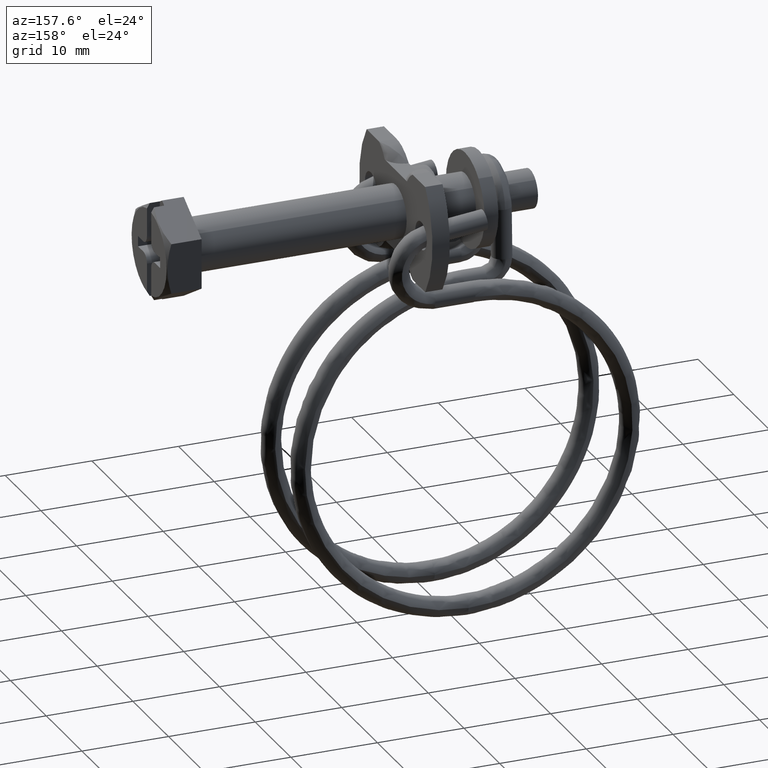
[diagram: clean part render]
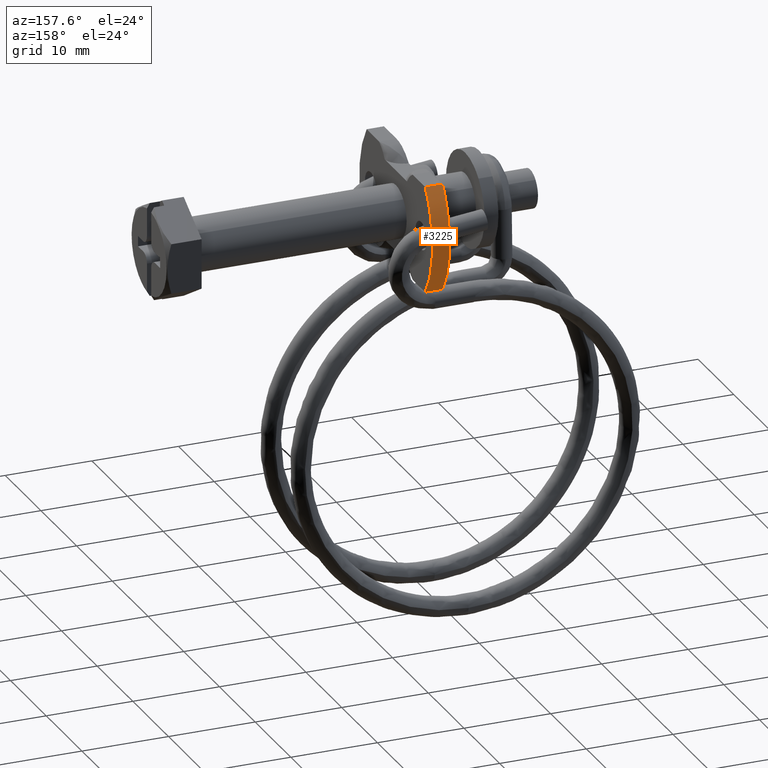
[diagram: same view with one face highlighted and labeled with its STEP entity id]
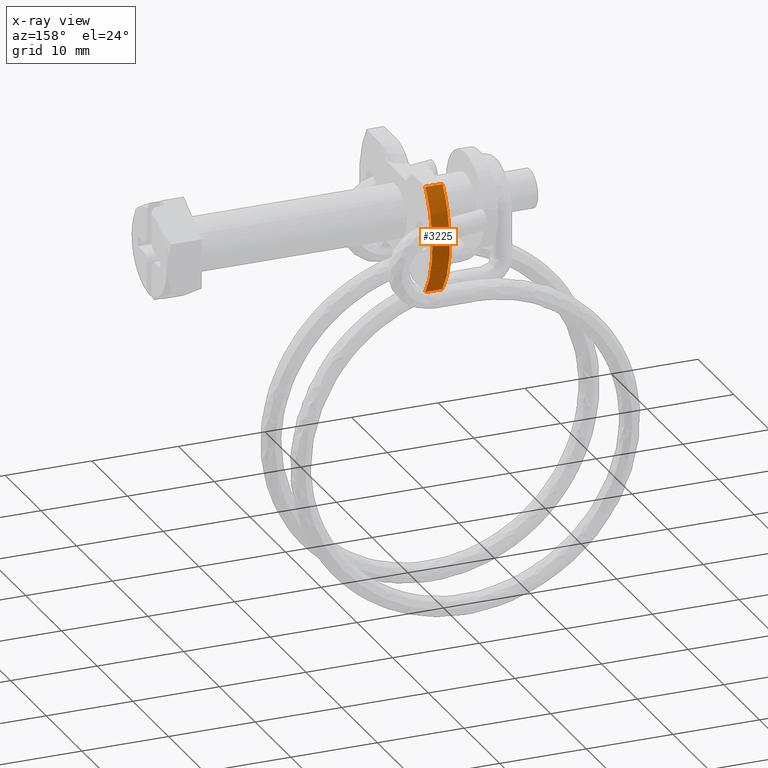
[diagram: x-ray of the same camera — body ghosted, the highlighted face saturated]
A machine part, auxiliary view. The second image highlights one B-rep face of the part: STEP entity #3225.
The next image is the same camera in x-ray: the body ghosted, the highlighted face saturated — about 0% of this face is hidden behind the body in this view.
In plain terms, the highlighted face is a freeform B-spline surface patch.
Its self-contained STEP definition (entity closure, byte-faithful):
#2922=CARTESIAN_POINT('',(-24.500000000008850,8.200000000000141,-6.149999999999810));
#2923=VERTEX_POINT('',#2922);
#2929=CARTESIAN_POINT('',(-24.500000000008850,8.200000000000101,6.150000000000090));
#2930=VERTEX_POINT('',#2929);
#2931=CARTESIAN_POINT('',(-24.500000000008850,8.200000000000141,-6.149999999999810));
#2932=CARTESIAN_POINT('',(-24.500000000008960,8.684565060821949,-5.504257042327268));
#2933=CARTESIAN_POINT('',(-24.500000000008569,9.239479090217813,-4.546416236724542));
#2934=CARTESIAN_POINT('',(-24.500000000009230,9.772619132928442,-3.148900838885548));
#2935=CARTESIAN_POINT('',(-24.500000000008001,10.077869310225459,-2.019445251496877));
#2936=CARTESIAN_POINT('',(-24.500000000009290,10.231653108547221,-0.893424348401779));
#2937=CARTESIAN_POINT('',(-24.500000000008530,10.264439785741130,0.292162986355805));
#2938=CARTESIAN_POINT('',(-24.500000000009411,10.189223492877050,1.287701570466284));
#2939=CARTESIAN_POINT('',(-24.500000000008509,9.969625917775385,2.470977185261473));
#2940=CARTESIAN_POINT('',(-24.500000000009688,9.675176067458837,3.443128125144578));
#2941=CARTESIAN_POINT('',(-24.500000000008470,9.120036396858728,4.757389757210363));
#2942=CARTESIAN_POINT('',(-24.500000000008850,8.622647715083399,5.586661521335944));
#2943=CARTESIAN_POINT('',(-24.500000000008850,8.200000000000101,6.150000000000090));
#2944=B_SPLINE_CURVE_WITH_KNOTS('',3,(#2931,#2932,#2933,#2934,#2935,#2936,#2937,#2938,#2939,#2940,#2941,#2942,#2943),.UNSPECIFIED.,.F.,.U.,(4,1,1,1,1,1,1,1,1,1,4),(0.000000018588985,2.421928629529800,3.297946924933243,4.483152371550728,5.926005081908213,6.698948295662325,8.038738281648943,8.914757223114222,10.306084846290361,11.079043640258689,13.191786622319681),.UNSPECIFIED.);
#2945=EDGE_CURVE('',#2923,#2930,#2944,.T.);
#3171=CARTESIAN_POINT('',(-26.500000000008850,8.200000000000141,-6.149999999999810));
#3172=VERTEX_POINT('',#3171);
#3178=CARTESIAN_POINT('',(-26.500000000008850,8.200000000000141,-6.149999999999810));
#3179=CARTESIAN_POINT('',(-24.500000000008850,8.200000000000141,-6.149999999999810));
#3180=QUASI_UNIFORM_CURVE('',1,(#3178,#3179),.UNSPECIFIED.,.F.,.U.);
#3181=EDGE_CURVE('',#3172,#2923,#3180,.T.);
#3186=CARTESIAN_POINT('',(-26.550000000008851,8.007224021571631,6.398973626165851));
#3187=CARTESIAN_POINT('',(-24.448750000008850,8.007224021571631,6.398973626165851));
#3188=CARTESIAN_POINT('',(-26.550000000008854,13.275345056595944,-0.193181266878902));
#3189=CARTESIAN_POINT('',(-24.448750000008854,13.275345056595944,-0.193181266878902));
#3190=CARTESIAN_POINT('',(-26.550000000008858,7.817638761485813,-6.629255176482084));
#3191=CARTESIAN_POINT('',(-24.448750000008854,7.817638761485813,-6.629255176482084));
#3199=(BOUNDED_SURFACE()B_SPLINE_SURFACE(1,2,((#3186,#3188,#3190),(#3187,#3189,#3191)),.UNSPECIFIED.,.F.,.F.,.U.)B_SPLINE_SURFACE_WITH_KNOTS((2,2),(3,3),(0.0,2.101250000000005),(0.0,14.705839359394300),.UNSPECIFIED.)GEOMETRIC_REPRESENTATION_ITEM()RATIONAL_B_SPLINE_SURFACE(((1.0,0.769439146848114,0.993309107093485),(1.0,0.769439146848114,0.993309107093485)))REPRESENTATION_ITEM('')SURFACE());
#3200=ORIENTED_EDGE('',*,*,#2945,.F.);
#3201=ORIENTED_EDGE('',*,*,#3181,.F.);
#3202=CARTESIAN_POINT('',(-26.500000000008850,8.200000000000101,6.150000000000090));
#3203=VERTEX_POINT('',#3202);
#3204=CARTESIAN_POINT('',(-26.500000000008850,8.200000000000141,-6.149999999999810));
#3205=CARTESIAN_POINT('',(-26.500000000008718,8.653580636851572,-5.545449335244956));
#3206=CARTESIAN_POINT('',(-26.500000000009159,9.303088318591396,-4.443807392035538));
#3207=CARTESIAN_POINT('',(-26.500000000008491,9.900396189570460,-2.791420495221988));
#3208=CARTESIAN_POINT('',(-26.500000000008921,10.182411382393729,-1.407881089111015));
#3209=CARTESIAN_POINT('',(-26.500000000008761,10.292587553685440,0.154178253655787));
#3210=CARTESIAN_POINT('',(-26.500000000009258,10.144022808352350,1.839066400576665));
#3211=CARTESIAN_POINT('',(-26.500000000008839,9.686706253856206,3.465866342897476));
#3212=CARTESIAN_POINT('',(-26.500000000009269,9.044867259075460,4.894223361929855));
#3213=CARTESIAN_POINT('',(-26.500000000008470,8.529826482500212,5.710299076386430));
#3214=CARTESIAN_POINT('',(-26.500000000008850,8.200000000000101,6.150000000000090));
#3215=B_SPLINE_CURVE_WITH_KNOTS('',3,(#3204,#3205,#3206,#3207,#3208,#3209,#3210,#3211,#3212,#3213,#3214),.UNSPECIFIED.,.F.,.U.,(4,1,1,1,1,1,1,1,4),(0.000000018588985,2.267333022241942,3.813253638827186,5.256110285886966,6.492838722205454,8.502517266683642,10.306084846290361,11.542821666736780,13.191786622319681),.UNSPECIFIED.);
#3216=EDGE_CURVE('',#3172,#3203,#3215,.T.);
#3217=ORIENTED_EDGE('',*,*,#3216,.T.);
#3218=CARTESIAN_POINT('',(-26.500000000008850,8.200000000000101,6.150000000000090));
#3219=CARTESIAN_POINT('',(-24.500000000008850,8.200000000000101,6.150000000000090));
#3220=QUASI_UNIFORM_CURVE('',1,(#3218,#3219),.UNSPECIFIED.,.F.,.U.);
#3221=EDGE_CURVE('',#3203,#2930,#3220,.T.);
#3222=ORIENTED_EDGE('',*,*,#3221,.T.);
#3223=EDGE_LOOP('',(#3200,#3201,#3217,#3222));
#3224=FACE_OUTER_BOUND('',#3223,.T.);
#3225=ADVANCED_FACE('',(#3224),#3199,.T.);